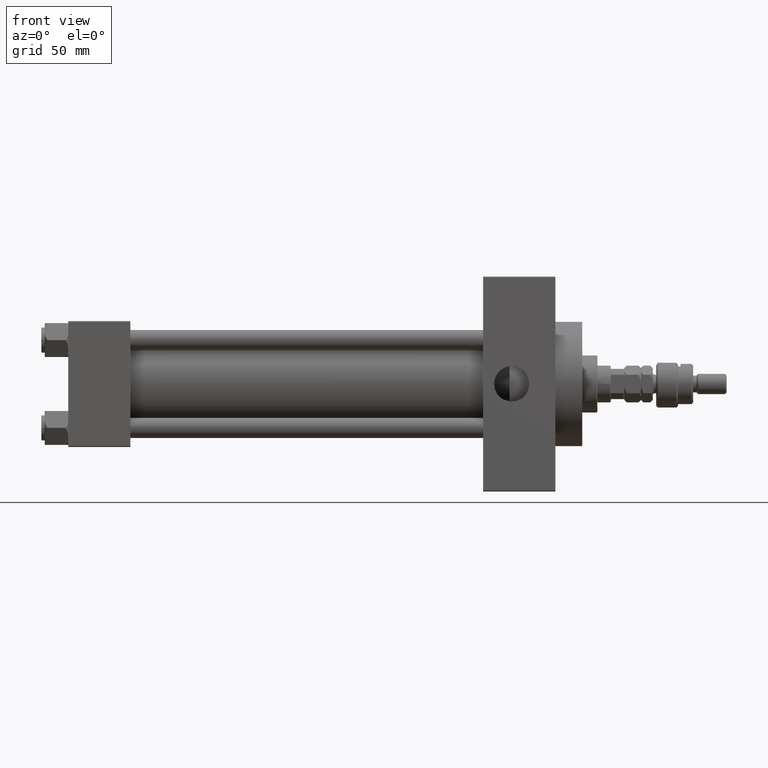
[diagram: clean part render]
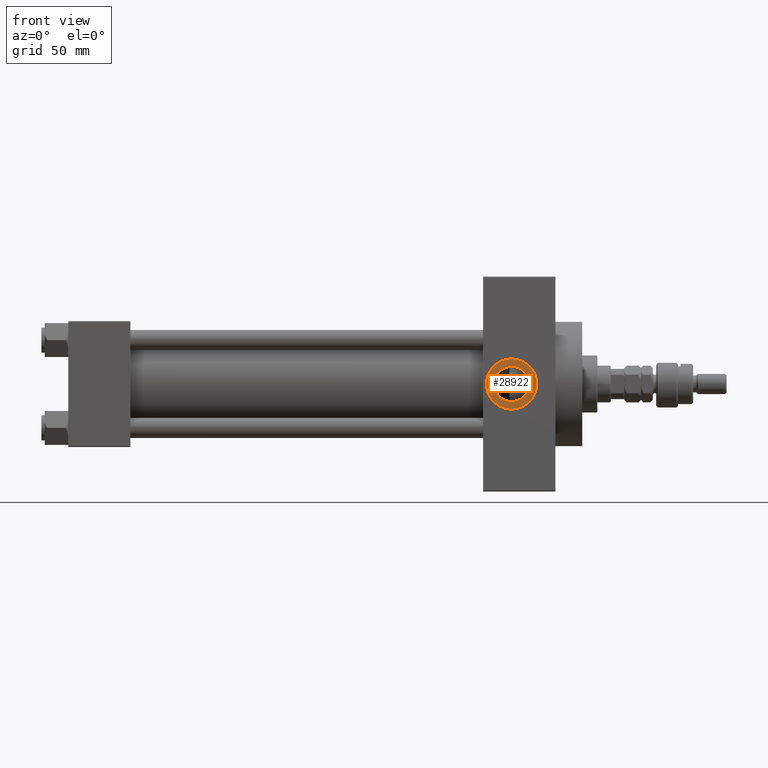
[diagram: same view with one face highlighted and labeled with its STEP entity id]
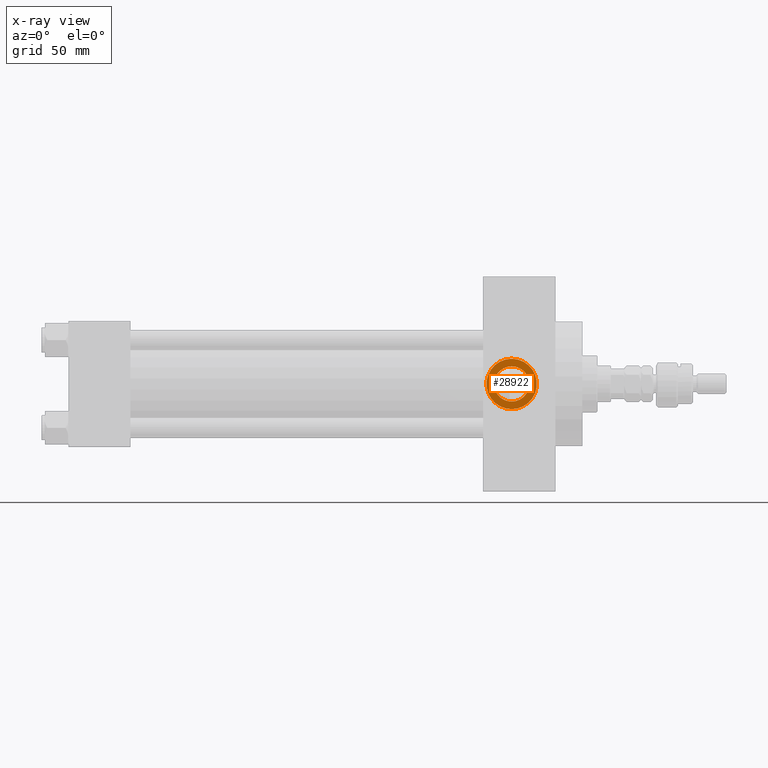
[diagram: x-ray of the same camera — body ghosted, the highlighted face saturated]
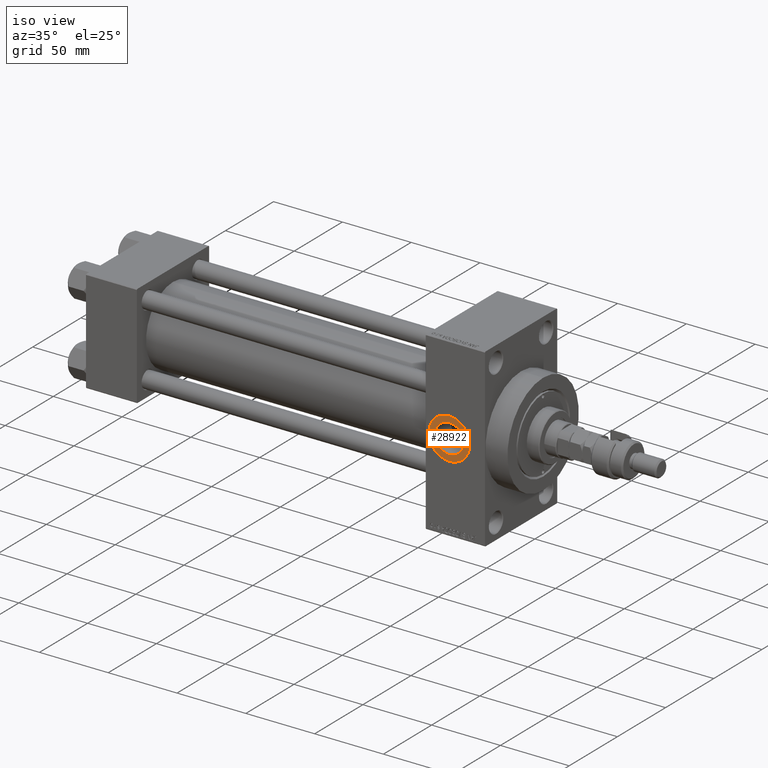
[diagram: same view with one face highlighted and labeled with its STEP entity id]
A machine part, front view. The second image highlights one B-rep face of the part: STEP entity #28922.
The next image is the same camera in x-ray: the body ghosted, the highlighted face saturated — about 0% of this face is hidden behind the body in this view.
A second angle (iso view) of the same face is appended — the face is thin or edge-on in the first view.
In plain terms, the highlighted planar face has unit normal (0, -1, -0).
Its self-contained STEP definition (entity closure, byte-faithful):
#3170 = VERTEX_POINT ( 'NONE', #6887 ) ;
#4179 = DIRECTION ( 'NONE',  ( 0.000000000000000000, 0.000000000000000000, -1.000000000000000000 ) ) ;
#6264 = DIRECTION ( 'NONE',  ( 0.000000000000000000, 0.000000000000000000, -1.000000000000000000 ) ) ;
#6887 = CARTESIAN_POINT ( 'NONE',  ( 264.0000000000000000, -37.29999999999999005, 10.47999999999998622 ) ) ;
#7129 = DIRECTION ( 'NONE',  ( 0.000000000000000000, -1.000000000000000000, -8.673617379884036705E-17 ) ) ;
#8523 = ORIENTED_EDGE ( 'NONE', *, *, #32492, .F. ) ;
#10094 = VERTEX_POINT ( 'NONE', #26449 ) ;
#10403 = VERTEX_POINT ( 'NONE', #15734 ) ;
#11612 = DIRECTION ( 'NONE',  ( 0.000000000000000000, 0.000000000000000000, -1.000000000000000000 ) ) ;
#12045 = DIRECTION ( 'NONE',  ( 0.000000000000000000, 8.673617379884036705E-17, -1.000000000000000000 ) ) ;
#13832 = CARTESIAN_POINT ( 'NONE',  ( 264.0000000000000000, -37.29999999999999005, -15.00000000000002487 ) ) ;
#15734 = CARTESIAN_POINT ( 'NONE',  ( 264.0000000000000000, -37.29999999999999005, -10.47999999999998622 ) ) ;
#17788 = ORIENTED_EDGE ( 'NONE', *, *, #36293, .F. ) ;
#21031 = DIRECTION ( 'NONE',  ( 0.000000000000000000, -1.000000000000000000, -8.673617379884036705E-17 ) ) ;
#21991 = DIRECTION ( 'NONE',  ( 0.000000000000000000, -1.000000000000000000, -8.673617379884036705E-17 ) ) ;
#22945 = VERTEX_POINT ( 'NONE', #13832 ) ;
#25306 = CIRCLE ( 'NONE', #45619, 15.00000000000002487 ) ;
#25311 = AXIS2_PLACEMENT_3D ( 'NONE', #52283, #21031, #12045 ) ;
#26449 = CARTESIAN_POINT ( 'NONE',  ( 264.0000000000000000, -37.29999999999999005, 15.00000000000002487 ) ) ;
#27789 = ORIENTED_EDGE ( 'NONE', *, *, #29710, .T. ) ;
#28002 = AXIS2_PLACEMENT_3D ( 'NONE', #50582, #21991, #29146 ) ;
#28435 = FACE_BOUND ( 'NONE', #41606, .T. ) ;
#28768 = CARTESIAN_POINT ( 'NONE',  ( 264.0000000000000000, -37.29999999999999005, 1.734723475976807403E-17 ) ) ;
#28922 = ADVANCED_FACE ( 'NONE', ( #28435, #36144 ), #40365, .T. ) ;
#29146 = DIRECTION ( 'NONE',  ( 0.000000000000000000, 0.000000000000000000, -1.000000000000000000 ) ) ;
#29538 = CIRCLE ( 'NONE', #43100, 15.00000000000002487 ) ;
#29710 = EDGE_CURVE ( 'NONE', #22945, #10094, #29538, .T. ) ;
#30599 = CARTESIAN_POINT ( 'NONE',  ( 264.0000000000000000, -37.29999999999999005, 1.734723475976807403E-17 ) ) ;
#31953 = EDGE_CURVE ( 'NONE', #10094, #22945, #25306, .T. ) ;
#32492 = EDGE_CURVE ( 'NONE', #10403, #3170, #36323, .T. ) ;
#35442 = CARTESIAN_POINT ( 'NONE',  ( 264.0000000000000000, -37.29999999999999005, 1.734723475976808635E-17 ) ) ;
#36144 = FACE_OUTER_BOUND ( 'NONE', #49074, .T. ) ;
#36293 = EDGE_CURVE ( 'NONE', #3170, #10403, #50840, .T. ) ;
#36323 = CIRCLE ( 'NONE', #39697, 10.47999999999998622 ) ;
#36474 = DIRECTION ( 'NONE',  ( 0.000000000000000000, -1.000000000000000000, -8.673617379884036705E-17 ) ) ;
#39697 = AXIS2_PLACEMENT_3D ( 'NONE', #35442, #7129, #11612 ) ;
#40365 = PLANE ( 'NONE',  #25311 ) ;
#41606 = EDGE_LOOP ( 'NONE', ( #8523, #17788 ) ) ;
#43100 = AXIS2_PLACEMENT_3D ( 'NONE', #28768, #36474, #4179 ) ;
#43373 = ORIENTED_EDGE ( 'NONE', *, *, #31953, .T. ) ;
#45619 = AXIS2_PLACEMENT_3D ( 'NONE', #30599, #46756, #6264 ) ;
#46756 = DIRECTION ( 'NONE',  ( 0.000000000000000000, -1.000000000000000000, -8.673617379884036705E-17 ) ) ;
#49074 = EDGE_LOOP ( 'NONE', ( #27789, #43373 ) ) ;
#50582 = CARTESIAN_POINT ( 'NONE',  ( 264.0000000000000000, -37.29999999999999005, 1.734723475976808635E-17 ) ) ;
#50840 = CIRCLE ( 'NONE', #28002, 10.47999999999998622 ) ;
#52283 = CARTESIAN_POINT ( 'NONE',  ( 264.0000000000000000, -37.29999999999999005, 1.734723475976807403E-17 ) ) ;